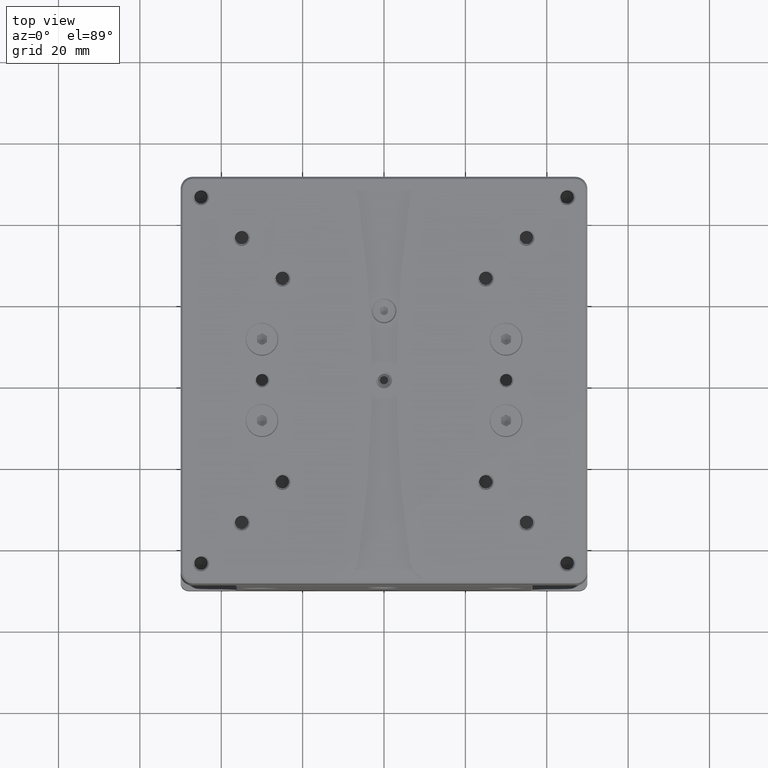
[diagram: clean part render]
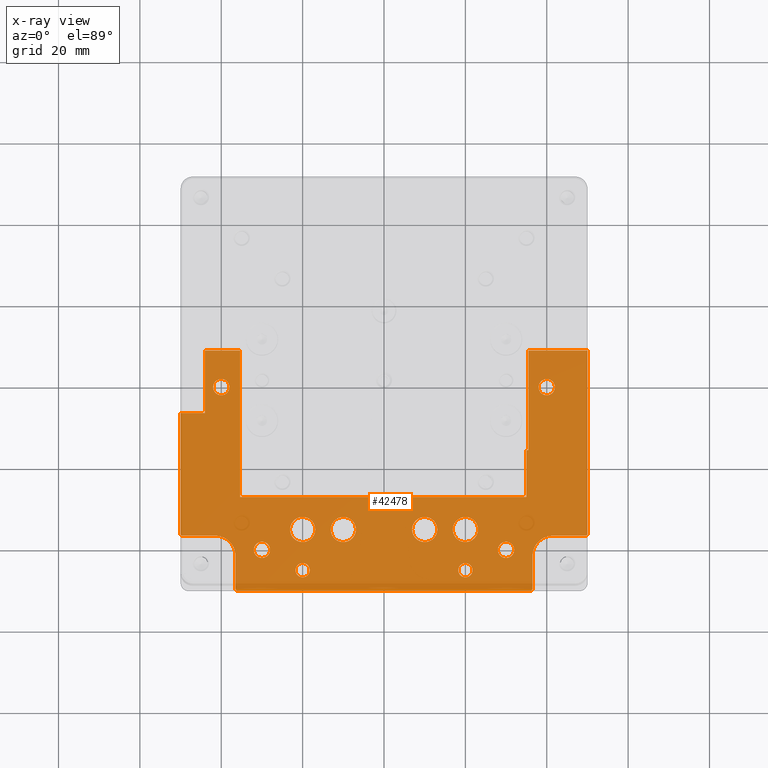
[diagram: x-ray — body ghosted, one internal face saturated and labeled with its STEP entity id]
A machine part, top view, then the same camera in x-ray: the body is ghosted and one INTERNAL B-rep face — a face not visible from any outside direction — is saturated and labeled: STEP entity #42478.
In plain terms, the highlighted planar face has unit normal (0, 0, -1).
Its self-contained STEP definition (entity closure, byte-faithful):
#439 = EDGE_CURVE ( 'NONE', #41310, #31858, #6017, .T. ) ;
#1039 = CARTESIAN_POINT ( 'NONE',  ( -37.99999999993360689, 7.183823263744830252E-15, -1.500674584598016281E-10 ) ) ;
#1054 = CARTESIAN_POINT ( 'NONE',  ( -36.50000000000000000, -49.69999999999998863, 1.734723475976807094E-15 ) ) ;
#1070 = CIRCLE ( 'NONE', #21380, 1.999999999952702723 ) ;
#1251 = CIRCLE ( 'NONE', #27823, 3.100000000000000533 ) ;
#1256 = LINE ( 'NONE', #38199, #45648 ) ;
#1384 = DIRECTION ( 'NONE',  ( 1.000000000000000000, 0.000000000000000000, 0.000000000000000000 ) ) ;
#1400 = ORIENTED_EDGE ( 'NONE', *, *, #33693, .T. ) ;
#1807 = AXIS2_PLACEMENT_3D ( 'NONE', #11470, #14878, #30299 ) ;
#1810 = VERTEX_POINT ( 'NONE', #24925 ) ;
#2041 = CARTESIAN_POINT ( 'NONE',  ( 50.00000000000000000, 8.999999999999994671, 0.000000000000000000 ) ) ;
#2072 = CARTESIAN_POINT ( 'NONE',  ( -10.00000000000000355, -34.99999999999999289, 0.000000000000000000 ) ) ;
#2164 = CARTESIAN_POINT ( 'NONE',  ( 10.00000000000000355, -34.99999999999999289, 0.000000000000000000 ) ) ;
#2200 = EDGE_CURVE ( 'NONE', #27655, #7150, #46822, .T. ) ;
#2243 = ORIENTED_EDGE ( 'NONE', *, *, #4783, .T. ) ;
#2308 = CARTESIAN_POINT ( 'NONE',  ( -28.00000000004731149, -40.00000000000000000, -2.730107806492299005E-11 ) ) ;
#2325 = DIRECTION ( 'NONE',  ( 1.000000000000000000, -5.763200916866468847E-16, 0.000000000000000000 ) ) ;
#2435 = CIRCLE ( 'NONE', #28905, 1.999999999952702723 ) ;
#2485 = CARTESIAN_POINT ( 'NONE',  ( 49.99999999999999289, -36.19999999999998863, 0.000000000000000000 ) ) ;
#2811 = CARTESIAN_POINT ( 'NONE',  ( -13.10000000000000320, -34.99999999999999289, 0.000000000000000000 ) ) ;
#2843 = EDGE_CURVE ( 'NONE', #18896, #41310, #28634, .T. ) ;
#2901 = DIRECTION ( 'NONE',  ( 0.000000000000000000, 0.000000000000000000, 1.000000000000000000 ) ) ;
#2906 = FACE_BOUND ( 'NONE', #40143, .T. ) ;
#3043 = ORIENTED_EDGE ( 'NONE', *, *, #34914, .T. ) ;
#3057 = CARTESIAN_POINT ( 'NONE',  ( -35.35000000000000853, 0.000000000000000000, 0.000000000000000000 ) ) ;
#3104 = CARTESIAN_POINT ( 'NONE',  ( -35.35000000000000853, -27.00000000000001066, 0.000000000000000000 ) ) ;
#3156 = CARTESIAN_POINT ( 'NONE',  ( 40.00000000000000000, 6.938893903907228378E-15, -7.730621700115613640E-11 ) ) ;
#3368 = FACE_BOUND ( 'NONE', #35398, .T. ) ;
#3421 = VECTOR ( 'NONE', #38862, 1000.000000000000000 ) ;
#3493 = VECTOR ( 'NONE', #11708, 1000.000000000000000 ) ;
#3802 = CARTESIAN_POINT ( 'NONE',  ( 0.000000000000000000, -36.50000000000000711, 0.000000000000000000 ) ) ;
#3882 = EDGE_CURVE ( 'NONE', #28139, #17312, #7716, .T. ) ;
#3930 = DIRECTION ( 'NONE',  ( -0.000000000000000000, -0.000000000000000000, 1.000000000000000000 ) ) ;
#4003 = DIRECTION ( 'NONE',  ( -1.000000000000000000, 0.000000000000000000, 0.000000000000000000 ) ) ;
#4097 = VECTOR ( 'NONE', #5470, 1000.000000000000000 ) ;
#4269 = VERTEX_POINT ( 'NONE', #30839 ) ;
#4304 = VECTOR ( 'NONE', #36822, 1000.000000000000000 ) ;
#4340 = EDGE_LOOP ( 'NONE', ( #30729, #29163 ) ) ;
#4414 = CARTESIAN_POINT ( 'NONE',  ( -40.00000000000000000, 6.938893903907228378E-15, -1.500674584598016281E-10 ) ) ;
#4459 = VECTOR ( 'NONE', #35049, 1000.000000000000114 ) ;
#4718 = DIRECTION ( 'NONE',  ( 0.7071067811865556774, 0.7071067811865393571, 0.000000000000000000 ) ) ;
#4783 = EDGE_CURVE ( 'NONE', #14407, #27655, #40505, .T. ) ;
#4891 = CARTESIAN_POINT ( 'NONE',  ( 41.49999999999999289, -41.50000000000000000, 0.000000000000000000 ) ) ;
#4921 = DIRECTION ( 'NONE',  ( 0.000000000000000000, 1.000000000000000000, 0.000000000000000000 ) ) ;
#5119 = CARTESIAN_POINT ( 'NONE',  ( -20.00000000000000355, -34.99999999999999289, 0.000000000000000000 ) ) ;
#5389 = CARTESIAN_POINT ( 'NONE',  ( -44.00000000000000000, -6.366062299143252723, 0.000000000000000000 ) ) ;
#5428 = EDGE_CURVE ( 'NONE', #38565, #16225, #1256, .T. ) ;
#5470 = DIRECTION ( 'NONE',  ( 1.000000000000000000, -5.763200916866468847E-16, 0.000000000000000000 ) ) ;
#5548 = EDGE_LOOP ( 'NONE', ( #7408, #16733 ) ) ;
#5592 = VECTOR ( 'NONE', #4718, 1000.000000000000000 ) ;
#5600 = DIRECTION ( 'NONE',  ( -1.000000000000000000, 0.000000000000000000, 0.000000000000000000 ) ) ;
#5822 = VECTOR ( 'NONE', #11629, 1000.000000000000000 ) ;
#6017 = LINE ( 'NONE', #35855, #30437 ) ;
#6274 = EDGE_CURVE ( 'NONE', #15986, #26779, #23014, .T. ) ;
#6741 = AXIS2_PLACEMENT_3D ( 'NONE', #3156, #7314, #18564 ) ;
#6877 = CARTESIAN_POINT ( 'NONE',  ( 20.00000000000000355, -34.99999999999999289, 0.000000000000000000 ) ) ;
#7047 = DIRECTION ( 'NONE',  ( -0.000000000000000000, -0.000000000000000000, 1.000000000000000000 ) ) ;
#7049 = PLANE ( 'NONE',  #47534 ) ;
#7150 = VERTEX_POINT ( 'NONE', #39671 ) ;
#7306 = CIRCLE ( 'NONE', #43252, 4.999999999999997335 ) ;
#7314 = DIRECTION ( 'NONE',  ( -0.000000000000000000, -0.000000000000000000, 1.000000000000000000 ) ) ;
#7337 = DIRECTION ( 'NONE',  ( 0.000000000000000000, 1.000000000000000000, 0.000000000000000000 ) ) ;
#7408 = ORIENTED_EDGE ( 'NONE', *, *, #20335, .T. ) ;
#7478 = ORIENTED_EDGE ( 'NONE', *, *, #34944, .T. ) ;
#7502 = CARTESIAN_POINT ( 'NONE',  ( 20.00000000000000000, -44.99999999999999289, 1.819031036909278627E-11 ) ) ;
#7716 = LINE ( 'NONE', #3802, #32599 ) ;
#7812 = EDGE_CURVE ( 'NONE', #46578, #23130, #35267, .T. ) ;
#7843 = DIRECTION ( 'NONE',  ( -1.000000000000000000, 0.000000000000000000, 0.000000000000000000 ) ) ;
#7912 = CARTESIAN_POINT ( 'NONE',  ( 16.90000000000000568, -34.99999999999999289, 0.000000000000000000 ) ) ;
#8324 = DIRECTION ( 'NONE',  ( 1.000000000000000000, 0.000000000000000000, 0.000000000000000000 ) ) ;
#8451 = DIRECTION ( 'NONE',  ( -0.000000000000000000, -0.000000000000000000, 1.000000000000000000 ) ) ;
#8568 = CARTESIAN_POINT ( 'NONE',  ( 20.00000000000000000, -44.99999999999999289, 1.819031036909278627E-11 ) ) ;
#8671 = EDGE_LOOP ( 'NONE', ( #11506, #35687 ) ) ;
#8778 = EDGE_CURVE ( 'NONE', #24062, #12288, #46559, .T. ) ;
#8960 = AXIS2_PLACEMENT_3D ( 'NONE', #40323, #7047, #36655 ) ;
#9170 = ORIENTED_EDGE ( 'NONE', *, *, #19774, .T. ) ;
#9177 = CARTESIAN_POINT ( 'NONE',  ( -18.25000000015506885, -44.99999999999999289, 9.549652735252323055E-11 ) ) ;
#9483 = CIRCLE ( 'NONE', #29812, 1.749999999901774572 ) ;
#9655 = CARTESIAN_POINT ( 'NONE',  ( 49.99999999999999289, -36.19999999999999574, 0.000000000000000000 ) ) ;
#10404 = EDGE_CURVE ( 'NONE', #30561, #14276, #33215, .T. ) ;
#10506 = ORIENTED_EDGE ( 'NONE', *, *, #45716, .T. ) ;
#10606 = VERTEX_POINT ( 'NONE', #21780 ) ;
#10836 = EDGE_CURVE ( 'NONE', #28280, #12288, #15385, .T. ) ;
#10948 = VERTEX_POINT ( 'NONE', #27838 ) ;
#10955 = FACE_BOUND ( 'NONE', #27088, .T. ) ;
#10976 = CARTESIAN_POINT ( 'NONE',  ( -41.49999999999999289, -41.50000000000000000, 0.000000000000000000 ) ) ;
#10994 = AXIS2_PLACEMENT_3D ( 'NONE', #16108, #24626, #13848 ) ;
#11352 = CIRCLE ( 'NONE', #30910, 2.000000000066393113 ) ;
#11470 = CARTESIAN_POINT ( 'NONE',  ( -10.00000000000000355, -34.99999999999999289, 0.000000000000000000 ) ) ;
#11506 = ORIENTED_EDGE ( 'NONE', *, *, #6274, .T. ) ;
#11541 = DIRECTION ( 'NONE',  ( -1.000000000000000000, 0.000000000000000000, 0.000000000000000000 ) ) ;
#11629 = DIRECTION ( 'NONE',  ( 0.7071067811865556774, -0.7071067811865393571, 0.000000000000000000 ) ) ;
#11708 = DIRECTION ( 'NONE',  ( -1.000000000000000000, 0.000000000000000000, -0.000000000000000000 ) ) ;
#11735 = LINE ( 'NONE', #18608, #32021 ) ;
#11971 = VERTEX_POINT ( 'NONE', #45009 ) ;
#12193 = EDGE_CURVE ( 'NONE', #43776, #14407, #16106, .T. ) ;
#12265 = EDGE_CURVE ( 'NONE', #35190, #27988, #47976, .T. ) ;
#12288 = VERTEX_POINT ( 'NONE', #32238 ) ;
#12522 = VERTEX_POINT ( 'NONE', #2811 ) ;
#13239 = LINE ( 'NONE', #28163, #4459 ) ;
#13735 = ORIENTED_EDGE ( 'NONE', *, *, #17147, .T. ) ;
#13848 = DIRECTION ( 'NONE',  ( -1.000000000000000000, 0.000000000000000000, 0.000000000000000000 ) ) ;
#14037 = CIRCLE ( 'NONE', #42950, 3.099999999999998757 ) ;
#14276 = VERTEX_POINT ( 'NONE', #33346 ) ;
#14330 = ORIENTED_EDGE ( 'NONE', *, *, #24975, .T. ) ;
#14356 = EDGE_CURVE ( 'NONE', #16918, #10606, #11352, .T. ) ;
#14407 = VERTEX_POINT ( 'NONE', #5389 ) ;
#14449 = DIRECTION ( 'NONE',  ( -1.000000000000000000, 0.000000000000000000, 0.000000000000000000 ) ) ;
#14865 = VECTOR ( 'NONE', #1384, 1000.000000000000000 ) ;
#14878 = DIRECTION ( 'NONE',  ( 0.000000000000000000, 0.000000000000000000, 1.000000000000000000 ) ) ;
#15115 = DIRECTION ( 'NONE',  ( 0.000000000000000000, 0.000000000000000000, 1.000000000000000000 ) ) ;
#15145 = VERTEX_POINT ( 'NONE', #1054 ) ;
#15385 = LINE ( 'NONE', #29813, #28318 ) ;
#15386 = LINE ( 'NONE', #45243, #3493 ) ;
#15733 = CARTESIAN_POINT ( 'NONE',  ( -41.49999999999999289, -36.50000000000000711, 0.000000000000000000 ) ) ;
#15771 = CARTESIAN_POINT ( 'NONE',  ( -49.70000000000000995, -36.50000000000000000, 0.000000000000000000 ) ) ;
#15974 = CIRCLE ( 'NONE', #29250, 3.099999999999998757 ) ;
#15986 = VERTEX_POINT ( 'NONE', #33981 ) ;
#16003 = EDGE_CURVE ( 'NONE', #24062, #10948, #15386, .T. ) ;
#16016 = VECTOR ( 'NONE', #36006, 1000.000000000000000 ) ;
#16076 = CIRCLE ( 'NONE', #31747, 4.999999999999997335 ) ;
#16106 = LINE ( 'NONE', #31043, #3421 ) ;
#16108 = CARTESIAN_POINT ( 'NONE',  ( 30.00000000000000000, -40.00000000000000000, -1.432465257522608226E-10 ) ) ;
#16157 = DIRECTION ( 'NONE',  ( -1.000000000000000000, 0.000000000000000000, 0.000000000000000000 ) ) ;
#16197 = LINE ( 'NONE', #31121, #28605 ) ;
#16225 = VERTEX_POINT ( 'NONE', #35916 ) ;
#16228 = CARTESIAN_POINT ( 'NONE',  ( 36.50000000000000000, -41.50000000000000000, 0.000000000000000000 ) ) ;
#16537 = DIRECTION ( 'NONE',  ( -0.000000000000000000, -0.000000000000000000, 1.000000000000000000 ) ) ;
#16733 = ORIENTED_EDGE ( 'NONE', *, *, #12265, .T. ) ;
#16918 = VERTEX_POINT ( 'NONE', #16940 ) ;
#16940 = CARTESIAN_POINT ( 'NONE',  ( 42.00000000006639311, 7.183823263744828674E-15, -7.730621700115613640E-11 ) ) ;
#17005 = CIRCLE ( 'NONE', #22470, 2.000000000066393113 ) ;
#17067 = EDGE_CURVE ( 'NONE', #15145, #19583, #41821, .T. ) ;
#17147 = EDGE_CURVE ( 'NONE', #14276, #30561, #30537, .T. ) ;
#17312 = VERTEX_POINT ( 'NONE', #17994 ) ;
#17360 = CARTESIAN_POINT ( 'NONE',  ( 35.45000000000000995, 9.000000000000007105, 1.300760621340314978E-31 ) ) ;
#17372 = ORIENTED_EDGE ( 'NONE', *, *, #24105, .T. ) ;
#17474 = ORIENTED_EDGE ( 'NONE', *, *, #2843, .T. ) ;
#17613 = EDGE_CURVE ( 'NONE', #1810, #39391, #2435, .T. ) ;
#17782 = CARTESIAN_POINT ( 'NONE',  ( 10.00000000000000355, -34.99999999999999289, 0.000000000000000000 ) ) ;
#17828 = FACE_BOUND ( 'NONE', #19100, .T. ) ;
#17994 = CARTESIAN_POINT ( 'NONE',  ( -49.70000000000000284, -36.50000000000000711, 0.000000000000000000 ) ) ;
#18044 = ORIENTED_EDGE ( 'NONE', *, *, #22041, .T. ) ;
#18053 = DIRECTION ( 'NONE',  ( 0.000000000000000000, 0.000000000000000000, -1.000000000000000000 ) ) ;
#18260 = CARTESIAN_POINT ( 'NONE',  ( -44.00000000000000000, 9.000000000000024869, 0.000000000000000000 ) ) ;
#18352 = AXIS2_PLACEMENT_3D ( 'NONE', #36989, #45064, #11541 ) ;
#18534 = FACE_BOUND ( 'NONE', #21503, .T. ) ;
#18564 = DIRECTION ( 'NONE',  ( -1.000000000000000000, 0.000000000000000000, 0.000000000000000000 ) ) ;
#18608 = CARTESIAN_POINT ( 'NONE',  ( -49.99999999999998579, 0.000000000000000000, 0.000000000000000000 ) ) ;
#18704 = DIRECTION ( 'NONE',  ( -1.000000000000000000, 0.000000000000000000, -0.000000000000000000 ) ) ;
#18757 = FACE_BOUND ( 'NONE', #4340, .T. ) ;
#18896 = VERTEX_POINT ( 'NONE', #46885 ) ;
#19100 = EDGE_LOOP ( 'NONE', ( #29960, #1400 ) ) ;
#19446 = LINE ( 'NONE', #15771, #5822 ) ;
#19567 = VECTOR ( 'NONE', #7337, 1000.000000000000000 ) ;
#19583 = VERTEX_POINT ( 'NONE', #38158 ) ;
#19749 = CIRCLE ( 'NONE', #1807, 3.100000000000000533 ) ;
#19774 = EDGE_CURVE ( 'NONE', #29937, #33998, #36400, .T. ) ;
#19841 = ORIENTED_EDGE ( 'NONE', *, *, #14356, .T. ) ;
#19879 = CARTESIAN_POINT ( 'NONE',  ( -6.900000000000002132, -34.99999999999999289, 0.000000000000000000 ) ) ;
#20335 = EDGE_CURVE ( 'NONE', #27988, #35190, #1251, .T. ) ;
#20751 = VECTOR ( 'NONE', #39688, 1000.000000000000114 ) ;
#21129 = DIRECTION ( 'NONE',  ( -1.000000000000000000, 0.000000000000000000, 0.000000000000000000 ) ) ;
#21200 = DIRECTION ( 'NONE',  ( 0.000000000000000000, 0.000000000000000000, 1.000000000000000000 ) ) ;
#21237 = DIRECTION ( 'NONE',  ( -1.000000000000000000, 0.000000000000000000, 0.000000000000000000 ) ) ;
#21380 = AXIS2_PLACEMENT_3D ( 'NONE', #24360, #31934, #32168 ) ;
#21489 = FACE_BOUND ( 'NONE', #40809, .T. ) ;
#21503 = EDGE_LOOP ( 'NONE', ( #34360, #13735 ) ) ;
#21780 = CARTESIAN_POINT ( 'NONE',  ( 37.99999999993360689, 6.938893903907228378E-15, -7.730621700115613640E-11 ) ) ;
#21904 = CARTESIAN_POINT ( 'NONE',  ( -44.00000000000000000, 0.000000000000000000, 0.000000000000000000 ) ) ;
#21978 = VERTEX_POINT ( 'NONE', #48196 ) ;
#21999 = EDGE_CURVE ( 'NONE', #38515, #21978, #24778, .T. ) ;
#22041 = EDGE_CURVE ( 'NONE', #47400, #38515, #47029, .T. ) ;
#22312 = DIRECTION ( 'NONE',  ( -0.000000000000000000, -0.000000000000000000, 1.000000000000000000 ) ) ;
#22441 = LINE ( 'NONE', #45643, #24793 ) ;
#22470 = AXIS2_PLACEMENT_3D ( 'NONE', #4414, #3930, #7843 ) ;
#22512 = EDGE_CURVE ( 'NONE', #22937, #11971, #9483, .T. ) ;
#22578 = VECTOR ( 'NONE', #28369, 1000.000000000000000 ) ;
#22937 = VERTEX_POINT ( 'NONE', #33135 ) ;
#23014 = CIRCLE ( 'NONE', #8960, 1.749999999844931153 ) ;
#23130 = VERTEX_POINT ( 'NONE', #1039 ) ;
#23623 = EDGE_CURVE ( 'NONE', #21978, #28280, #7306, .T. ) ;
#23924 = EDGE_CURVE ( 'NONE', #12522, #24422, #19749, .T. ) ;
#24040 = EDGE_CURVE ( 'NONE', #39391, #1810, #1070, .T. ) ;
#24062 = VERTEX_POINT ( 'NONE', #37870 ) ;
#24105 = EDGE_CURVE ( 'NONE', #7150, #45983, #44414, .T. ) ;
#24166 = ORIENTED_EDGE ( 'NONE', *, *, #439, .T. ) ;
#24360 = CARTESIAN_POINT ( 'NONE',  ( -30.00000000000001776, -40.00000000000000000, -2.730107806492299005E-11 ) ) ;
#24420 = CIRCLE ( 'NONE', #31460, 3.099999999999998757 ) ;
#24422 = VERTEX_POINT ( 'NONE', #19879 ) ;
#24626 = DIRECTION ( 'NONE',  ( -0.000000000000000000, -0.000000000000000000, 1.000000000000000000 ) ) ;
#24778 = LINE ( 'NONE', #28400, #16016 ) ;
#24793 = VECTOR ( 'NONE', #27047, 1000.000000000000000 ) ;
#24868 = ORIENTED_EDGE ( 'NONE', *, *, #24040, .T. ) ;
#24910 = CARTESIAN_POINT ( 'NONE',  ( 13.10000000000000320, -34.99999999999999289, 0.000000000000000000 ) ) ;
#24925 = CARTESIAN_POINT ( 'NONE',  ( -31.99999999995272049, -40.00000000000000000, -2.730107806492299005E-11 ) ) ;
#24975 = EDGE_CURVE ( 'NONE', #11971, #22937, #42303, .T. ) ;
#25245 = ORIENTED_EDGE ( 'NONE', *, *, #22512, .T. ) ;
#26779 = VERTEX_POINT ( 'NONE', #9177 ) ;
#26785 = DIRECTION ( 'NONE',  ( -1.000000000000000000, 0.000000000000000000, 0.000000000000000000 ) ) ;
#27047 = DIRECTION ( 'NONE',  ( -1.387778780781445922E-16, 1.000000000000000000, 0.000000000000000000 ) ) ;
#27088 = EDGE_LOOP ( 'NONE', ( #3043, #19841 ) ) ;
#27264 = DIRECTION ( 'NONE',  ( 0.000000000000000000, 0.000000000000000000, 1.000000000000000000 ) ) ;
#27615 = DIRECTION ( 'NONE',  ( -1.000000000000000000, 0.000000000000000000, 0.000000000000000000 ) ) ;
#27655 = VERTEX_POINT ( 'NONE', #18260 ) ;
#27823 = AXIS2_PLACEMENT_3D ( 'NONE', #17782, #21200, #29254 ) ;
#27827 = EDGE_CURVE ( 'NONE', #47400, #31858, #22441, .T. ) ;
#27838 = CARTESIAN_POINT ( 'NONE',  ( -36.19999999999998863, -49.99999999999998579, 5.204170427930421283E-15 ) ) ;
#27951 = CARTESIAN_POINT ( 'NONE',  ( 36.50000000000000000, -49.69999999999998153, 0.000000000000000000 ) ) ;
#27988 = VERTEX_POINT ( 'NONE', #39269 ) ;
#28090 = DIRECTION ( 'NONE',  ( 0.000000000000000000, 0.000000000000000000, 1.000000000000000000 ) ) ;
#28139 = VERTEX_POINT ( 'NONE', #15733 ) ;
#28163 = CARTESIAN_POINT ( 'NONE',  ( -36.19999999999998863, -49.99999999999998579, 5.204170427930421283E-15 ) ) ;
#28280 = VERTEX_POINT ( 'NONE', #16228 ) ;
#28318 = VECTOR ( 'NONE', #47965, 1000.000000000000000 ) ;
#28369 = DIRECTION ( 'NONE',  ( 0.000000000000000000, 1.000000000000000000, 0.000000000000000000 ) ) ;
#28400 = CARTESIAN_POINT ( 'NONE',  ( 0.000000000000000000, -36.50000000000000711, 0.000000000000000000 ) ) ;
#28605 = VECTOR ( 'NONE', #42381, 1000.000000000000000 ) ;
#28634 = LINE ( 'NONE', #43588, #22578 ) ;
#28652 = CARTESIAN_POINT ( 'NONE',  ( -23.10000000000000142, -34.99999999999999289, 0.000000000000000000 ) ) ;
#28773 = ORIENTED_EDGE ( 'NONE', *, *, #23623, .T. ) ;
#28790 = ORIENTED_EDGE ( 'NONE', *, *, #3882, .T. ) ;
#28905 = AXIS2_PLACEMENT_3D ( 'NONE', #31903, #46319, #21129 ) ;
#29071 = CARTESIAN_POINT ( 'NONE',  ( 34.95000000000000995, -27.00000000000000355, 0.000000000000000000 ) ) ;
#29163 = ORIENTED_EDGE ( 'NONE', *, *, #31448, .T. ) ;
#29200 = CARTESIAN_POINT ( 'NONE',  ( -16.90000000000000568, -34.99999999999999289, 0.000000000000000000 ) ) ;
#29213 = DIRECTION ( 'NONE',  ( -0.000000000000000000, -1.000000000000000000, -0.000000000000000000 ) ) ;
#29250 = AXIS2_PLACEMENT_3D ( 'NONE', #44681, #41003, #37087 ) ;
#29254 = DIRECTION ( 'NONE',  ( -1.000000000000000000, 0.000000000000000000, 0.000000000000000000 ) ) ;
#29301 = FACE_BOUND ( 'NONE', #5548, .T. ) ;
#29308 = ORIENTED_EDGE ( 'NONE', *, *, #27827, .F. ) ;
#29314 = ORIENTED_EDGE ( 'NONE', *, *, #33560, .F. ) ;
#29812 = AXIS2_PLACEMENT_3D ( 'NONE', #7502, #8451, #26785 ) ;
#29813 = CARTESIAN_POINT ( 'NONE',  ( 36.50000000000000000, 0.000000000000000000, 0.000000000000000000 ) ) ;
#29860 = EDGE_CURVE ( 'NONE', #45983, #38565, #16197, .T. ) ;
#29901 = ORIENTED_EDGE ( 'NONE', *, *, #8778, .F. ) ;
#29937 = VERTEX_POINT ( 'NONE', #28652 ) ;
#29960 = ORIENTED_EDGE ( 'NONE', *, *, #23924, .T. ) ;
#30299 = DIRECTION ( 'NONE',  ( -1.000000000000000000, 0.000000000000000000, 0.000000000000000000 ) ) ;
#30437 = VECTOR ( 'NONE', #2325, 1000.000000000000000 ) ;
#30537 = CIRCLE ( 'NONE', #10994, 2.000000000066393113 ) ;
#30561 = VERTEX_POINT ( 'NONE', #38056 ) ;
#30729 = ORIENTED_EDGE ( 'NONE', *, *, #7812, .T. ) ;
#30748 = AXIS2_PLACEMENT_3D ( 'NONE', #2164, #2901, #21237 ) ;
#30839 = CARTESIAN_POINT ( 'NONE',  ( 23.10000000000000142, -34.99999999999999289, 0.000000000000000000 ) ) ;
#30910 = AXIS2_PLACEMENT_3D ( 'NONE', #45288, #22312, #37936 ) ;
#31043 = CARTESIAN_POINT ( 'NONE',  ( 0.000000000000000000, -6.366062299143250947, 0.000000000000000000 ) ) ;
#31066 = CARTESIAN_POINT ( 'NONE',  ( -20.00000000000000000, -44.99999999999999289, 9.549652735252323055E-11 ) ) ;
#31118 = EDGE_CURVE ( 'NONE', #15145, #10948, #13239, .T. ) ;
#31121 = CARTESIAN_POINT ( 'NONE',  ( 0.000000000000000000, -27.00000000000001066, 0.000000000000000000 ) ) ;
#31135 = ORIENTED_EDGE ( 'NONE', *, *, #17613, .T. ) ;
#31306 = DIRECTION ( 'NONE',  ( 0.000000000000000000, 0.000000000000000000, 1.000000000000000000 ) ) ;
#31448 = EDGE_CURVE ( 'NONE', #23130, #46578, #17005, .T. ) ;
#31460 = AXIS2_PLACEMENT_3D ( 'NONE', #44160, #37529, #4003 ) ;
#31563 = DIRECTION ( 'NONE',  ( -0.000000000000000000, -0.000000000000000000, 1.000000000000000000 ) ) ;
#31632 = ORIENTED_EDGE ( 'NONE', *, *, #31118, .F. ) ;
#31716 = LINE ( 'NONE', #35628, #14865 ) ;
#31747 = AXIS2_PLACEMENT_3D ( 'NONE', #10976, #15115, #36914 ) ;
#31858 = VERTEX_POINT ( 'NONE', #44736 ) ;
#31903 = CARTESIAN_POINT ( 'NONE',  ( -30.00000000000001776, -40.00000000000000000, -2.730107806492299005E-11 ) ) ;
#31934 = DIRECTION ( 'NONE',  ( -0.000000000000000000, -0.000000000000000000, 1.000000000000000000 ) ) ;
#32021 = VECTOR ( 'NONE', #41845, 1000.000000000000000 ) ;
#32168 = DIRECTION ( 'NONE',  ( -1.000000000000000000, 0.000000000000000000, 0.000000000000000000 ) ) ;
#32238 = CARTESIAN_POINT ( 'NONE',  ( 36.50000000000000711, -49.69999999999996732, 0.000000000000000000 ) ) ;
#32583 = ORIENTED_EDGE ( 'NONE', *, *, #47638, .T. ) ;
#32599 = VECTOR ( 'NONE', #18704, 1000.000000000000000 ) ;
#32757 = FACE_BOUND ( 'NONE', #8671, .T. ) ;
#33042 = CARTESIAN_POINT ( 'NONE',  ( -49.99999999999998579, -36.20000000000000284, 0.000000000000000000 ) ) ;
#33135 = CARTESIAN_POINT ( 'NONE',  ( 21.74999999990177457, -44.99999999999999289, 1.819031036909279919E-11 ) ) ;
#33215 = CIRCLE ( 'NONE', #18352, 2.000000000066393113 ) ;
#33346 = CARTESIAN_POINT ( 'NONE',  ( 32.00000000006639311, -40.00000000000000000, -1.432465257522608226E-10 ) ) ;
#33538 = EDGE_CURVE ( 'NONE', #40731, #4269, #15974, .T. ) ;
#33560 = EDGE_CURVE ( 'NONE', #42038, #17312, #19446, .T. ) ;
#33693 = EDGE_CURVE ( 'NONE', #24422, #12522, #33970, .T. ) ;
#33970 = CIRCLE ( 'NONE', #46472, 3.100000000000000533 ) ;
#33981 = CARTESIAN_POINT ( 'NONE',  ( -21.74999999984493115, -44.99999999999999289, 9.549652735252323055E-11 ) ) ;
#33987 = CARTESIAN_POINT ( 'NONE',  ( -36.50000000000000000, 0.000000000000000000, 0.000000000000000000 ) ) ;
#33998 = VERTEX_POINT ( 'NONE', #29200 ) ;
#34130 = ORIENTED_EDGE ( 'NONE', *, *, #5428, .T. ) ;
#34360 = ORIENTED_EDGE ( 'NONE', *, *, #10404, .T. ) ;
#34469 = AXIS2_PLACEMENT_3D ( 'NONE', #8568, #31563, #16157 ) ;
#34904 = ORIENTED_EDGE ( 'NONE', *, *, #16003, .T. ) ;
#34914 = EDGE_CURVE ( 'NONE', #10606, #16918, #45772, .T. ) ;
#34944 = EDGE_CURVE ( 'NONE', #19583, #28139, #16076, .T. ) ;
#35049 = DIRECTION ( 'NONE',  ( 0.7071067811865474617, -0.7071067811865474617, 0.000000000000000000 ) ) ;
#35190 = VERTEX_POINT ( 'NONE', #24910 ) ;
#35267 = CIRCLE ( 'NONE', #37639, 2.000000000066393113 ) ;
#35372 = ORIENTED_EDGE ( 'NONE', *, *, #21999, .T. ) ;
#35398 = EDGE_LOOP ( 'NONE', ( #44072, #40760 ) ) ;
#35423 = ORIENTED_EDGE ( 'NONE', *, *, #12193, .T. ) ;
#35443 = VECTOR ( 'NONE', #29213, 1000.000000000000000 ) ;
#35628 = CARTESIAN_POINT ( 'NONE',  ( 0.000000000000000000, -15.50000000000001066, 0.000000000000000000 ) ) ;
#35687 = ORIENTED_EDGE ( 'NONE', *, *, #45440, .T. ) ;
#35855 = CARTESIAN_POINT ( 'NONE',  ( 50.00000000000000000, 8.999999999999994671, 0.000000000000000000 ) ) ;
#35916 = CARTESIAN_POINT ( 'NONE',  ( 34.95000000000000995, -15.50000000000001066, 0.000000000000000000 ) ) ;
#36006 = DIRECTION ( 'NONE',  ( -1.000000000000000000, 0.000000000000000000, -0.000000000000000000 ) ) ;
#36400 = CIRCLE ( 'NONE', #42662, 3.099999999999998757 ) ;
#36605 = ORIENTED_EDGE ( 'NONE', *, *, #29860, .T. ) ;
#36655 = DIRECTION ( 'NONE',  ( -1.000000000000000000, 0.000000000000000000, 0.000000000000000000 ) ) ;
#36716 = CARTESIAN_POINT ( 'NONE',  ( -49.99999999999998579, -6.366062299143252723, 0.000000000000000000 ) ) ;
#36728 = EDGE_LOOP ( 'NONE', ( #17372, #36605, #34130, #10506, #17474, #24166, #29308, #18044, #35372, #28773, #37319, #29901, #34904, #31632, #45672, #7478, #28790, #29314, #42440, #35423, #2243, #41669 ) ) ;
#36822 = DIRECTION ( 'NONE',  ( 0.000000000000000000, 1.000000000000000000, 0.000000000000000000 ) ) ;
#36889 = FACE_OUTER_BOUND ( 'NONE', #36728, .T. ) ;
#36914 = DIRECTION ( 'NONE',  ( 1.000000000000000000, 0.000000000000000000, 0.000000000000000000 ) ) ;
#36989 = CARTESIAN_POINT ( 'NONE',  ( 30.00000000000000000, -40.00000000000000000, -1.432465257522608226E-10 ) ) ;
#37087 = DIRECTION ( 'NONE',  ( -1.000000000000000000, 0.000000000000000000, 0.000000000000000000 ) ) ;
#37319 = ORIENTED_EDGE ( 'NONE', *, *, #10836, .T. ) ;
#37480 = CIRCLE ( 'NONE', #42202, 1.749999999844931153 ) ;
#37529 = DIRECTION ( 'NONE',  ( 0.000000000000000000, 0.000000000000000000, 1.000000000000000000 ) ) ;
#37639 = AXIS2_PLACEMENT_3D ( 'NONE', #41524, #16537, #41773 ) ;
#37870 = CARTESIAN_POINT ( 'NONE',  ( 36.19999999999998153, -49.99999999999998579, 5.782411586589356653E-16 ) ) ;
#37936 = DIRECTION ( 'NONE',  ( -1.000000000000000000, 0.000000000000000000, 0.000000000000000000 ) ) ;
#38056 = CARTESIAN_POINT ( 'NONE',  ( 27.99999999993360689, -40.00000000000000000, -1.432465257522608226E-10 ) ) ;
#38158 = CARTESIAN_POINT ( 'NONE',  ( -36.50000000000000000, -41.50000000000000000, 0.000000000000000000 ) ) ;
#38199 = CARTESIAN_POINT ( 'NONE',  ( 34.95000000000000995, 0.000000000000000000, 0.000000000000000000 ) ) ;
#38515 = VERTEX_POINT ( 'NONE', #38638 ) ;
#38565 = VERTEX_POINT ( 'NONE', #29071 ) ;
#38638 = CARTESIAN_POINT ( 'NONE',  ( 49.69999999999998863, -36.50000000000000711, 0.000000000000000000 ) ) ;
#38862 = DIRECTION ( 'NONE',  ( 1.000000000000000000, -0.000000000000000000, 0.000000000000000000 ) ) ;
#39253 = DIRECTION ( 'NONE',  ( -1.000000000000000000, 0.000000000000000000, 0.000000000000000000 ) ) ;
#39269 = CARTESIAN_POINT ( 'NONE',  ( 6.900000000000003020, -34.99999999999999289, 0.000000000000000000 ) ) ;
#39391 = VERTEX_POINT ( 'NONE', #2308 ) ;
#39671 = CARTESIAN_POINT ( 'NONE',  ( -35.35000000000000853, 9.000000000000015987, 0.000000000000000000 ) ) ;
#39688 = DIRECTION ( 'NONE',  ( -0.7071067811865392461, -0.7071067811865556774, 0.000000000000000000 ) ) ;
#40143 = EDGE_LOOP ( 'NONE', ( #9170, #32583 ) ) ;
#40323 = CARTESIAN_POINT ( 'NONE',  ( -20.00000000000000000, -44.99999999999999289, 9.549652735252323055E-11 ) ) ;
#40505 = LINE ( 'NONE', #21904, #4304 ) ;
#40731 = VERTEX_POINT ( 'NONE', #7912 ) ;
#40760 = ORIENTED_EDGE ( 'NONE', *, *, #43703, .T. ) ;
#40809 = EDGE_LOOP ( 'NONE', ( #31135, #24868 ) ) ;
#41003 = DIRECTION ( 'NONE',  ( 0.000000000000000000, 0.000000000000000000, 1.000000000000000000 ) ) ;
#41310 = VERTEX_POINT ( 'NONE', #17360 ) ;
#41524 = CARTESIAN_POINT ( 'NONE',  ( -40.00000000000000000, 6.938893903907228378E-15, -1.500674584598016281E-10 ) ) ;
#41669 = ORIENTED_EDGE ( 'NONE', *, *, #2200, .T. ) ;
#41773 = DIRECTION ( 'NONE',  ( -1.000000000000000000, 0.000000000000000000, 0.000000000000000000 ) ) ;
#41821 = LINE ( 'NONE', #33987, #19567 ) ;
#41845 = DIRECTION ( 'NONE',  ( 0.000000000000000000, 1.000000000000000000, 0.000000000000000000 ) ) ;
#42038 = VERTEX_POINT ( 'NONE', #33042 ) ;
#42202 = AXIS2_PLACEMENT_3D ( 'NONE', #31066, #46218, #27615 ) ;
#42303 = CIRCLE ( 'NONE', #34469, 1.749999999901774572 ) ;
#42381 = DIRECTION ( 'NONE',  ( 1.000000000000000000, -0.000000000000000000, 0.000000000000000000 ) ) ;
#42440 = ORIENTED_EDGE ( 'NONE', *, *, #45208, .T. ) ;
#42478 = ADVANCED_FACE ( 'NONE', ( #36889, #29301, #3368, #17828, #2906, #10955, #18534, #21489, #18757, #32757, #44246 ), #7049, .T. ) ;
#42662 = AXIS2_PLACEMENT_3D ( 'NONE', #5119, #28090, #5600 ) ;
#42950 = AXIS2_PLACEMENT_3D ( 'NONE', #6877, #43599, #14449 ) ;
#43252 = AXIS2_PLACEMENT_3D ( 'NONE', #4891, #31306, #8324 ) ;
#43588 = CARTESIAN_POINT ( 'NONE',  ( 35.45000000000000995, 0.000000000000000000, 0.000000000000000000 ) ) ;
#43599 = DIRECTION ( 'NONE',  ( 0.000000000000000000, 0.000000000000000000, 1.000000000000000000 ) ) ;
#43703 = EDGE_CURVE ( 'NONE', #4269, #40731, #14037, .T. ) ;
#43776 = VERTEX_POINT ( 'NONE', #36716 ) ;
#44072 = ORIENTED_EDGE ( 'NONE', *, *, #33538, .T. ) ;
#44160 = CARTESIAN_POINT ( 'NONE',  ( -20.00000000000000355, -34.99999999999999289, 0.000000000000000000 ) ) ;
#44246 = FACE_BOUND ( 'NONE', #48139, .T. ) ;
#44414 = LINE ( 'NONE', #3057, #35443 ) ;
#44488 = CARTESIAN_POINT ( 'NONE',  ( 0.000000000000000000, 0.000000000000000000, 0.000000000000000000 ) ) ;
#44681 = CARTESIAN_POINT ( 'NONE',  ( 20.00000000000000355, -34.99999999999999289, 0.000000000000000000 ) ) ;
#44736 = CARTESIAN_POINT ( 'NONE',  ( 49.99999999999998579, 9.000000000000003553, 0.000000000000000000 ) ) ;
#45009 = CARTESIAN_POINT ( 'NONE',  ( 18.25000000009822543, -44.99999999999999289, 1.819031036909279919E-11 ) ) ;
#45064 = DIRECTION ( 'NONE',  ( -0.000000000000000000, -0.000000000000000000, 1.000000000000000000 ) ) ;
#45208 = EDGE_CURVE ( 'NONE', #42038, #43776, #11735, .T. ) ;
#45243 = CARTESIAN_POINT ( 'NONE',  ( 0.000000000000000000, -49.99999999999998579, 0.000000000000000000 ) ) ;
#45288 = CARTESIAN_POINT ( 'NONE',  ( 40.00000000000000000, 6.938893903907228378E-15, -7.730621700115613640E-11 ) ) ;
#45440 = EDGE_CURVE ( 'NONE', #26779, #15986, #37480, .T. ) ;
#45643 = CARTESIAN_POINT ( 'NONE',  ( 49.99999999999998579, 50.00000000000000000, 0.000000000000000000 ) ) ;
#45648 = VECTOR ( 'NONE', #4921, 1000.000000000000000 ) ;
#45672 = ORIENTED_EDGE ( 'NONE', *, *, #17067, .T. ) ;
#45716 = EDGE_CURVE ( 'NONE', #16225, #18896, #31716, .T. ) ;
#45772 = CIRCLE ( 'NONE', #6741, 2.000000000066393113 ) ;
#45983 = VERTEX_POINT ( 'NONE', #3104 ) ;
#46218 = DIRECTION ( 'NONE',  ( -0.000000000000000000, -0.000000000000000000, 1.000000000000000000 ) ) ;
#46319 = DIRECTION ( 'NONE',  ( -0.000000000000000000, -0.000000000000000000, 1.000000000000000000 ) ) ;
#46472 = AXIS2_PLACEMENT_3D ( 'NONE', #2072, #27264, #39253 ) ;
#46559 = LINE ( 'NONE', #27951, #5592 ) ;
#46578 = VERTEX_POINT ( 'NONE', #46799 ) ;
#46799 = CARTESIAN_POINT ( 'NONE',  ( -42.00000000006639311, 6.938893903907228378E-15, -1.500674584598016281E-10 ) ) ;
#46822 = LINE ( 'NONE', #2041, #4097 ) ;
#46885 = CARTESIAN_POINT ( 'NONE',  ( 35.45000000000000995, -15.50000000000001066, 5.134581400027558663E-32 ) ) ;
#47029 = LINE ( 'NONE', #2485, #20751 ) ;
#47400 = VERTEX_POINT ( 'NONE', #9655 ) ;
#47534 = AXIS2_PLACEMENT_3D ( 'NONE', #44488, #18053, #48171 ) ;
#47638 = EDGE_CURVE ( 'NONE', #33998, #29937, #24420, .T. ) ;
#47965 = DIRECTION ( 'NONE',  ( -0.000000000000000000, -1.000000000000000000, -0.000000000000000000 ) ) ;
#47976 = CIRCLE ( 'NONE', #30748, 3.100000000000000533 ) ;
#48139 = EDGE_LOOP ( 'NONE', ( #14330, #25245 ) ) ;
#48171 = DIRECTION ( 'NONE',  ( -1.000000000000000000, 0.000000000000000000, -0.000000000000000000 ) ) ;
#48196 = CARTESIAN_POINT ( 'NONE',  ( 41.49999999999999289, -36.50000000000000711, 0.000000000000000000 ) ) ;